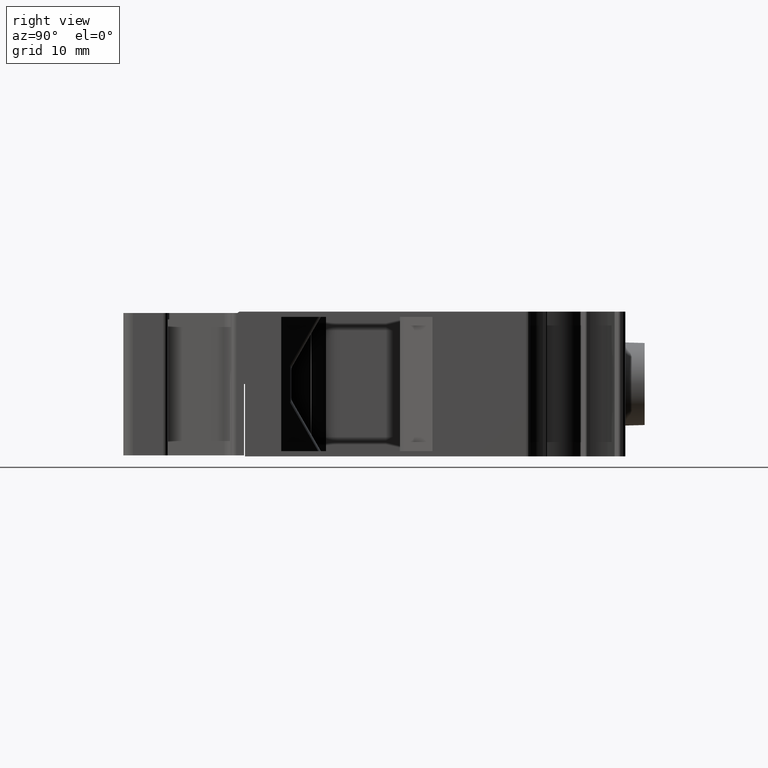
[diagram: clean part render]
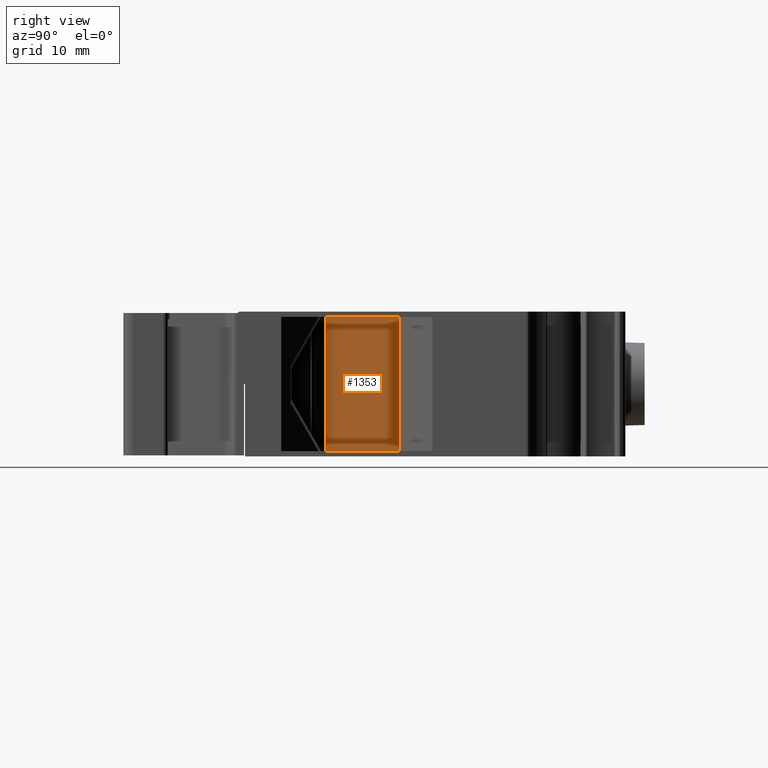
[diagram: same view with one face highlighted and labeled with its STEP entity id]
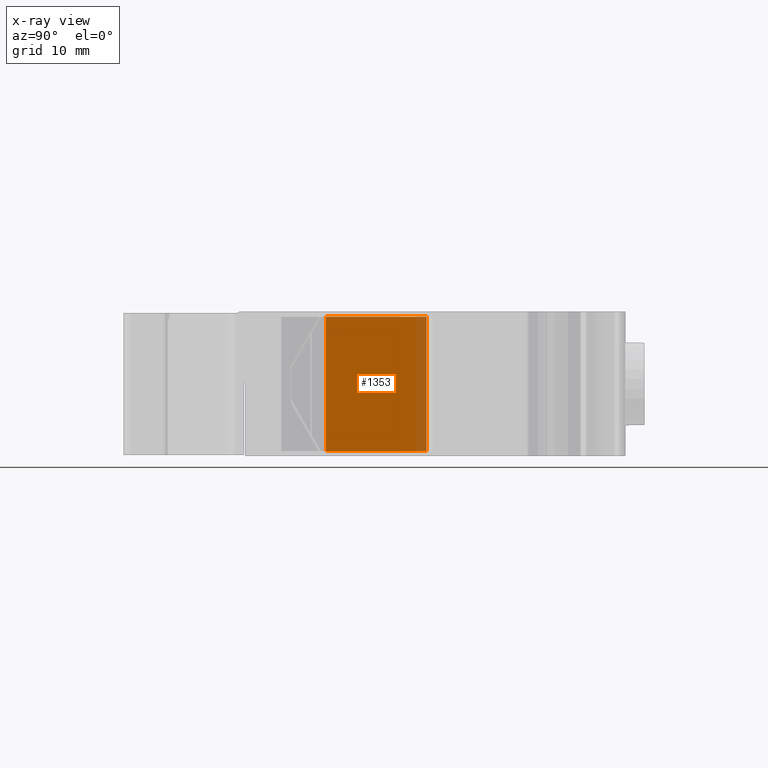
[diagram: x-ray of the same camera — body ghosted, the highlighted face saturated]
A machine part, right view. The second image highlights one B-rep face of the part: STEP entity #1353.
The next image is the same camera in x-ray: the body ghosted, the highlighted face saturated — about 10% of this face is hidden behind the body in this view.
In plain terms, the highlighted planar face has unit normal (1, 0, 0).
Its self-contained STEP definition (entity closure, byte-faithful):
#1353 = ADVANCED_FACE ( 'NONE', ( #6422 ), #6414, .T. ) ;
#6233 = VERTEX_POINT ( 'NONE', #17679 ) ;
#6242 = VERTEX_POINT ( 'NONE', #17682 ) ;
#6265 = VERTEX_POINT ( 'NONE', #17723 ) ;
#6267 = VERTEX_POINT ( 'NONE', #17719 ) ;
#6389 = DIRECTION ( 'NONE',  ( 1.000000000000000000, 4.227742104205510200E-027, 1.024210827134004000E-013 ) ) ;
#6404 = CARTESIAN_POINT ( 'NONE',  ( -293.7999906352304700, 310.3202978189475500, -26.34572616096805200 ) ) ;
#6408 = DIRECTION ( 'NONE',  ( 1.024210827134004000E-013, 0.0000000000000000000, -1.000000000000000000 ) ) ;
#6414 = PLANE ( 'NONE',  #10264 ) ;
#6422 = FACE_OUTER_BOUND ( 'NONE', #15929, .T. ) ;
#8709 = VECTOR ( 'NONE', #14361, 1000.000000000000000 ) ;
#8722 = VECTOR ( 'NONE', #14318, 1000.000000000000000 ) ;
#8730 = VECTOR ( 'NONE', #14298, 1000.000000000000000 ) ;
#8817 = VECTOR ( 'NONE', #14370, 1000.000000000000000 ) ;
#10264 = AXIS2_PLACEMENT_3D ( 'NONE', #6404, #6389, #6408 ) ;
#13862 = ORIENTED_EDGE ( 'NONE', *, *, #20058, .F. ) ;
#13879 = ORIENTED_EDGE ( 'NONE', *, *, #20093, .T. ) ;
#13886 = ORIENTED_EDGE ( 'NONE', *, *, #20076, .T. ) ;
#13888 = ORIENTED_EDGE ( 'NONE', *, *, #20092, .F. ) ;
#14234 = LINE ( 'NONE', #14287, #8730 ) ;
#14287 = CARTESIAN_POINT ( 'NONE',  ( -293.7999906352225100, 310.3202978189465300, -105.2401719637025900 ) ) ;
#14298 = DIRECTION ( 'NONE',  ( 2.491007036110229900E-027, -1.000000000000000000, 1.695681223127760400E-014 ) ) ;
#14317 = LINE ( 'NONE', #14342, #8722 ) ;
#14318 = DIRECTION ( 'NONE',  ( 1.775804023869015000E-027, -1.000000000000000000, 2.393977895349559800E-014 ) ) ;
#14342 = CARTESIAN_POINT ( 'NONE',  ( -293.7999906352234800, 329.9065935291665100, -91.34017196369751400 ) ) ;
#14348 = LINE ( 'NONE', #14362, #8817 ) ;
#14359 = CARTESIAN_POINT ( 'NONE',  ( -293.7999906352304700, 310.3202978189475500, -26.34572616096805200 ) ) ;
#14361 = DIRECTION ( 'NONE',  ( 1.024210827134004000E-013, -4.089659118477320100E-014, -1.000000000000000000 ) ) ;
#14362 = CARTESIAN_POINT ( 'NONE',  ( -293.7999906352304700, 299.8980160062969800, -26.34572616096765100 ) ) ;
#14370 = DIRECTION ( 'NONE',  ( 1.024210827134004000E-013, -4.089659118477320100E-014, -1.000000000000000000 ) ) ;
#14388 = LINE ( 'NONE', #14359, #8709 ) ;
#15929 = EDGE_LOOP ( 'NONE', ( #13888, #13886, #13879, #13862 ) ) ;
#17679 = CARTESIAN_POINT ( 'NONE',  ( -293.7999906352225100, 299.8980160062940300, -105.2401719637024100 ) ) ;
#17682 = CARTESIAN_POINT ( 'NONE',  ( -293.7999906352225100, 310.3202978189445400, -105.2401719637025900 ) ) ;
#17719 = CARTESIAN_POINT ( 'NONE',  ( -293.7999906352234800, 310.3202978189450500, -91.34017196369700300 ) ) ;
#17723 = CARTESIAN_POINT ( 'NONE',  ( -293.7999906352234800, 299.8980160062944800, -91.34017196369680400 ) ) ;
#20058 = EDGE_CURVE ( 'NONE', #6242, #6233, #14234, .T. ) ;
#20076 = EDGE_CURVE ( 'NONE', #6267, #6265, #14317, .T. ) ;
#20092 = EDGE_CURVE ( 'NONE', #6267, #6242, #14388, .T. ) ;
#20093 = EDGE_CURVE ( 'NONE', #6265, #6233, #14348, .T. ) ;